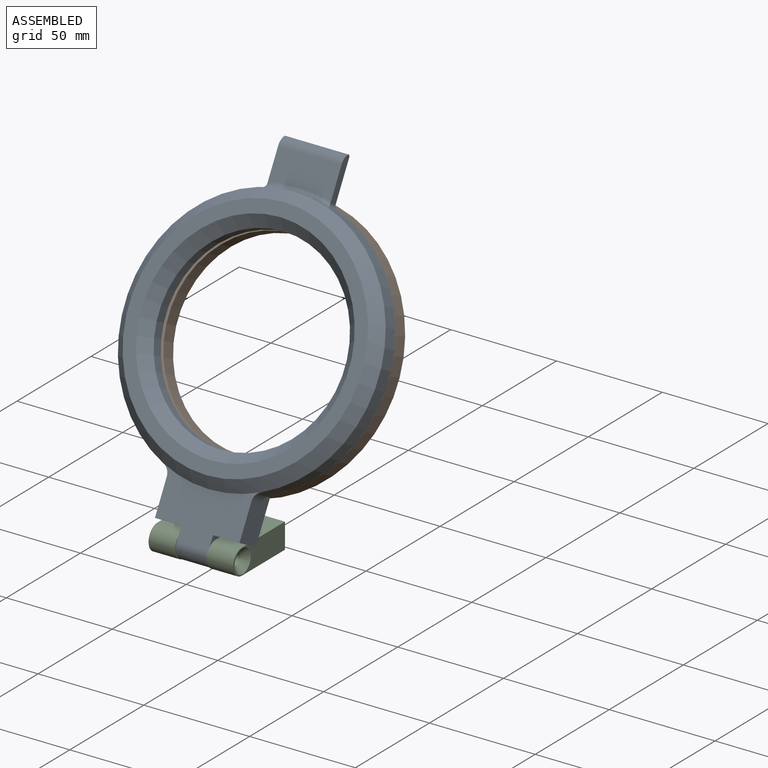
[diagram: assembled view]
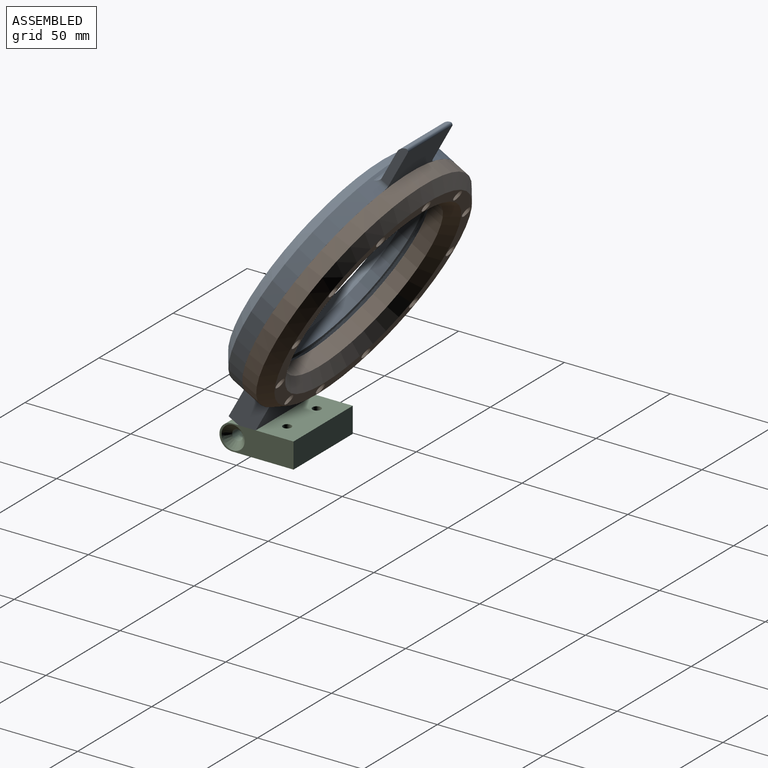
[diagram: assembled view, second angle]
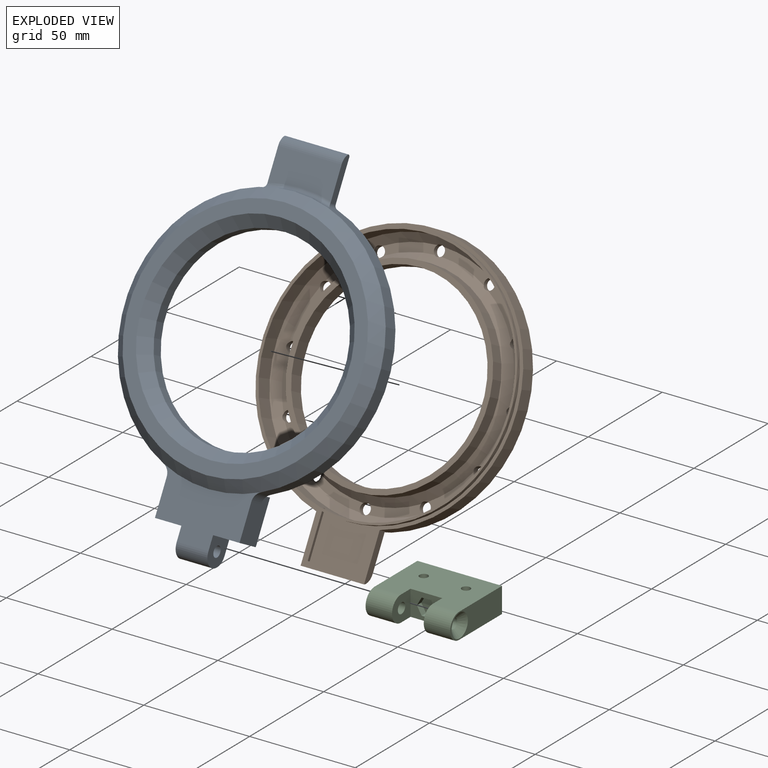
[diagram: exploded view]
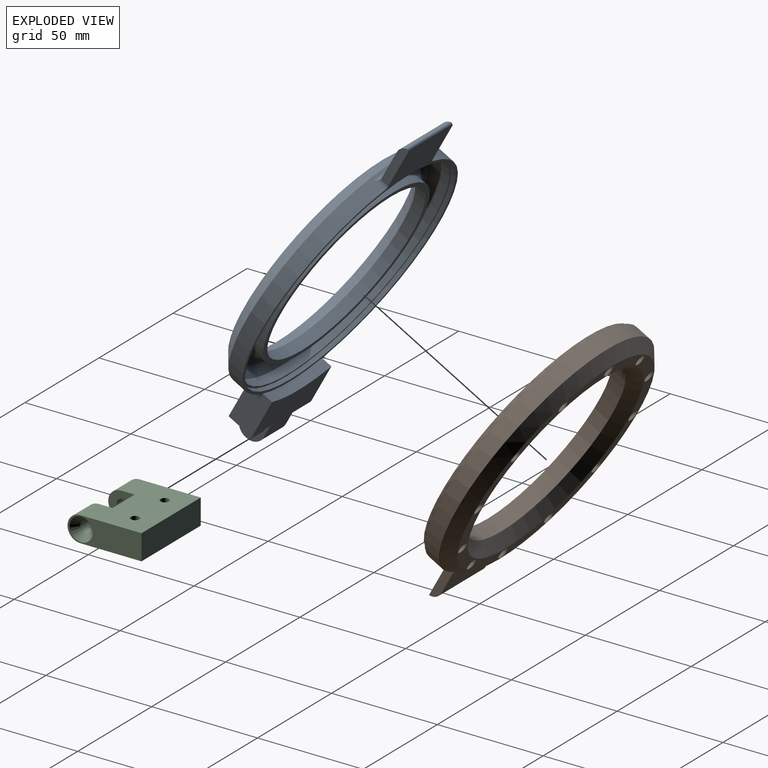
[diagram: exploded view, second angle]
ASSEMBLY  parts=3 mates=2
PART A: 37 faces, bbox 120x17.5x168.6 mm
  f0: cylinder r=44mm len=88mm, axis (0,1,0), area 1520.5mm2, adj f4,f29
  f1: plane 138.57x120mm, normal (0,-1,0), area 1139.3mm2, adj f2,f6,f7,f11,f12,f18,f19,f21
  f2: cylinder r=60mm len=120mm, axis (0,1,0), area 2272.1mm2, adj f1,f5,f18,f19,f20,f21,f22
  f3: plane 110x110mm, normal (0,1,0), area 1960.4mm2, adj f4,f5
  f4: cone r=49mm half-angle=45deg, axis (0,1,0), area 2065.9mm2, adj f0,f3
  f5: cone r=60mm half-angle=45deg, axis (0,-1,0), area 2554.7mm2, adj f2,f3,f17
  f6: plane 19.94x4.07mm, normal (1,0,0), area 76.1mm2, adj f1,f8,f9,f19,f20,f28
  f7: plane 19.94x4.07mm, normal (-1,0,0), area 76.1mm2, adj f1,f8,f9,f18,f20,f28
  f8: plane 30x14.94mm, normal (0,1,0), area 411.3mm2, adj f6,f7,f9,f20
  f9: cylinder r=5mm len=30mm, axis (-1,0,0), area 157.1mm2, adj f6,f7,f8,f28
  f10: plane 12.5x12.5mm, normal (0,0,1), area 156.3mm2, adj f11,f16,f17,f24
  f11: plane 20x12.5mm, normal (-1,0,0), area 224.3mm2, adj f1,f10,f17,f21,f23,f24
  f12: plane 20x12.5mm, normal (1,0,0), area 224.3mm2, adj f1,f13,f17,f22,f23,f24
  f13: plane 12.5x12.5mm, normal (0,0,1), area 156.3mm2, adj f12,f14,f17,f24
  f14: plane 12.5x12.5mm, normal (1,0,0), area 121.2mm2, adj f13,f15,f17,f24,f25,f26,f27
  f15: plane 15x0.5mm, normal (0,0,1), area 7.5mm2, adj f14,f16,f25,f26
  f16: plane 12.5x12.5mm, normal (-1,0,0), area 121.2mm2, adj f10,f15,f17,f24,f25,f26,f27
  f17: plane 46.15x27.68mm, normal (0,1,0), area 809.6mm2, adj f5,f10,f11,f12,f13,f14,f16,f21
  f18: cylinder r=2mm len=6mm, axis (0,1,0), area 12.6mm2, adj f1,f2,f7,f20
  f19: cylinder r=2mm len=6mm, axis (0,1,0), area 12.6mm2, adj f1,f2,f6,f20
  f20: torus R=62mm, axis (0,-1,0), area 98mm2, adj f2,f6,f7,f8,f18,f19
  f21: cylinder r=5mm len=7.5mm, axis (0,1,0), area 44.1mm2, adj f1,f2,f11,f17
  f22: cylinder r=5mm len=7.5mm, axis (0,1,0), area 44.1mm2, adj f1,f2,f12,f17
  f23: cylinder r=60mm len=40mm, axis (0,1,0), area 203.9mm2, adj f1,f11,f12,f24
  f24: plane 40x26.5mm, normal (0,-1,0), area 805.5mm2, adj f10,f11,f12,f13,f14,f16,f23,f25
  f25: cylinder r=6mm len=15mm, axis (-1,0,0), area 141.4mm2, adj f14,f15,f16,f24
  f26: cylinder r=6mm len=15mm, axis (1,0,0), area 141.4mm2, adj f14,f15,f16,f17
  f27: cylinder r=2.5mm len=15mm, axis (-1,0,0), area 235.6mm2, adj f14,f16
  f28: cylinder r=1mm len=30mm, axis (-1,0,0), area 62.8mm2, adj f1,f6,f7,f9
  f29: plane 93x93mm, normal (0,-1,0), area 710.8mm2, adj f0,f36
  f30: cylinder r=58.5mm len=117mm, axis (0,-1,0), area 735.1mm2, adj f1,f31
  f31: plane 117x117mm, normal (0,-1,0), area 364.4mm2, adj f30,f33
  f32: cone r=58.23mm half-angle=45deg, axis (0,-1,0), area 1750.9mm2, adj f33,f34
  f33: cylinder r=57.5mm len=115mm, axis (0,1,0), area 1612.9mm2, adj f31,f32
  f34: plane 107.93x107.93mm, normal (0,-1,0), area 1283.7mm2, adj f32,f35
  f35: cone r=50.77mm half-angle=45deg, axis (0,1,0), area 1516.4mm2, adj f34,f36
  f36: cylinder r=46.5mm len=93mm, axis (0,1,0), area 1304.4mm2, adj f29,f35
PART B: 46 faces, bbox 120x14.5x140 mm
  f0: plane 19.61x19.61mm, normal (0,-1,0), area 89.6mm2, adj f24,f25,f40,f41
  f1: plane 24.09x9.87mm, normal (0,-1,0), area 89.6mm2, adj f24,f25,f30,f41
  f2: plane 24.09x9.87mm, normal (0,-1,0), area 89.6mm2, adj f24,f25,f39,f40
  f3: plane 24.09x9.87mm, normal (0,-1,0), area 89.6mm2, adj f24,f25,f38,f39
  f4: plane 19.61x19.61mm, normal (0,-1,0), area 89.6mm2, adj f24,f25,f37,f38
  f5: plane 24.09x9.87mm, normal (0,-1,0), area 89.6mm2, adj f24,f25,f36,f37
  f6: plane 24.09x9.87mm, normal (0,-1,0), area 89.6mm2, adj f24,f25,f35,f36
  f7: plane 24.09x9.87mm, normal (0,-1,0), area 89.6mm2, adj f24,f25,f33,f34
  f8: plane 24.09x9.87mm, normal (0,-1,0), area 89.6mm2, adj f24,f25,f32,f33
  f9: plane 19.61x19.61mm, normal (0,-1,0), area 89.6mm2, adj f24,f25,f31,f32
  f10: plane 24.09x9.87mm, normal (0,-1,0), area 89.6mm2, adj f24,f25,f30,f31
  f11: plane 93x93mm, normal (0,-1,0), area 710.8mm2, adj f13,f22
  f12: cylinder r=60mm len=120mm, axis (0,1,0), area 2706.1mm2, adj f14,f17,f18,f19,f20
  f13: cylinder r=44mm len=88mm, axis (0,1,0), area 2073.5mm2, adj f11,f16
  f14: plane 140x120mm, normal (0,-1,0), area 691.1mm2, adj f12,f18,f19,f26,f27,f28,f42,f44
  f15: plane 110x110mm, normal (0,1,0), area 1724.7mm2, adj f16,f17,f30,f31,f32,f33,f34,f35
  f16: cone r=49mm half-angle=45deg, axis (0,1,0), area 2065.9mm2, adj f13,f15
  f17: cone r=60mm half-angle=45deg, axis (0,-1,0), area 2554.7mm2, adj f12,f15
  f18: plane 21.91x4mm, normal (1,0,0), area 82.7mm2, adj f12,f14,f20,f42
  f19: plane 21.91x4mm, normal (-1,0,0), area 82.7mm2, adj f12,f14,f20,f42
  f20: plane 30x17.01mm, normal (0,1,0), area 472mm2, adj f12,f18,f19,f42
  f21: cylinder r=57.5mm len=115mm, axis (0,1,0), area 3020.3mm2, adj f25,f26,f27,f29,f43,f45
  f22: cylinder r=46.5mm len=93mm, axis (0,1,0), area 1888.7mm2, adj f11,f24
  f23: plane 19.61x19.61mm, normal (0,-1,0), area 89.6mm2, adj f24,f25,f34,f35
  f24: cone r=50.77mm half-angle=45deg, axis (0,1,0), area 1497.6mm2, adj f0,f1,f2,f3,f4,f5,f6,f7
  f25: cone r=58.23mm half-angle=45deg, axis (0,-1,0), area 1731.3mm2, adj f0,f1,f2,f3,f4,f5,f6,f7
  f26: plane 21.38x1.5mm, normal (-1,0,0), area 32.1mm2, adj f14,f21,f28,f29,f43
  f27: plane 21.38x1.5mm, normal (1,0,0), area 32.1mm2, adj f14,f21,f28,f29,f43
  f28: plane 25x1.5mm, normal (0,0,1), area 37.5mm2, adj f14,f26,f27,f29
  f29: plane 25x21.38mm, normal (0,-1,0), area 511.4mm2, adj f21,f26,f27,f28
  f30: cylinder r=2.5mm len=5mm, axis (0,1,0), area 41.6mm2, adj f1,f10,f15,f24,f25
  f31: cylinder r=2.5mm len=5mm, axis (0,1,0), area 41.6mm2, adj f9,f10,f15,f24,f25
  f32: cylinder r=2.5mm len=5mm, axis (0,1,0), area 41.6mm2, adj f8,f9,f15,f24,f25
  f33: cylinder r=2.5mm len=5mm, axis (0,1,0), area 41.6mm2, adj f7,f8,f15,f24,f25
  f34: cylinder r=2.5mm len=5mm, axis (0,1,0), area 41.6mm2, adj f7,f15,f23,f24,f25
  f35: cylinder r=2.5mm len=5mm, axis (0,1,0), area 41.6mm2, adj f6,f15,f23,f24,f25
  f36: cylinder r=2.5mm len=5mm, axis (0,1,0), area 41.6mm2, adj f5,f6,f15,f24,f25
  f37: cylinder r=2.5mm len=5mm, axis (0,1,0), area 41.6mm2, adj f4,f5,f15,f24,f25
  f38: cylinder r=2.5mm len=5mm, axis (0,1,0), area 41.6mm2, adj f3,f4,f15,f24,f25
  f39: cylinder r=2.5mm len=5mm, axis (0,1,0), area 41.6mm2, adj f2,f3,f15,f24,f25
  f40: cylinder r=2.5mm len=5mm, axis (0,1,0), area 41.6mm2, adj f0,f2,f15,f24,f25
  f41: cylinder r=2.5mm len=5mm, axis (0,1,0), area 41.6mm2, adj f0,f1,f15,f24,f25
  f42: cylinder r=5mm len=30mm, axis (-1,0,0), area 205.4mm2, adj f14,f18,f19,f20
  f43: plane 25x2.38mm, normal (0,1,0), area 25.2mm2, adj f21,f26,f27,f44
  f44: cylinder r=58.5mm len=117mm, axis (0,1,0), area 735.1mm2, adj f14,f43,f45
  f45: plane 117x117mm, normal (0,-1,0), area 364.4mm2, adj f21,f44
PART C: 29 faces, bbox 40x12x35 mm
  f0: plane 15x12mm, normal (0,0,-1), area 127.4mm2, adj f3,f4,f7,f8,f20,f21,f22,f23
  f1: plane 35x12mm, normal (1,0,0), area 351.9mm2, adj f5,f7,f8,f9,f14,f15,f16,f17
  f2: cylinder r=2.5mm len=9.4mm, axis (1,0,0), area 147.7mm2, adj f4,f13
  f3: plane 12.5x12mm, normal (1,0,0), area 114.9mm2, adj f0,f7,f8,f10,f11
  f4: plane 12.5x12mm, normal (-1,0,0), area 114.9mm2, adj f0,f2,f7,f8,f9
  f5: plane 40x12mm, normal (0,0,1), area 480mm2, adj f1,f6,f7,f8
  f6: plane 35x12mm, normal (-1,0,0), area 309.5mm2, adj f5,f7,f8,f10,f12
  f7: plane 40x29mm, normal (0,-1,0), area 1037.4mm2, adj f0,f1,f3,f4,f5,f6,f9,f10
  f8: plane 40x29mm, normal (0,1,0), area 1037.4mm2, adj f0,f1,f3,f4,f5,f6,f9,f10
  f9: cylinder r=6mm len=12.5mm, axis (-1,0,0), area 235.6mm2, adj f1,f4,f7,f8
  f10: cylinder r=6mm len=12.5mm, axis (-1,0,0), area 235.6mm2, adj f3,f6,f7,f8
  f11: cylinder r=2.5mm len=9.5mm, axis (1,0,0), area 149.2mm2, adj f3,f12
  f12: cone r=2.5mm half-angle=45deg, axis (-1,0,0), area 106.6mm2, adj f6,f11
  f13: plane 9x7.79mm, normal (1,0,0), area 33mm2, adj f2,f14,f15,f16,f17,f18,f19
  f14: plane 4.5x3.1mm, normal (0,0,-1), area 14mm2, adj f1,f13,f15,f19
  f15: plane 3.9x3.1mm, normal (0,0.87,-0.5), area 13.9mm2, adj f1,f13,f14,f16
  f16: plane 3.9x3.1mm, normal (0,0.87,0.5), area 14mm2, adj f1,f13,f15,f17
  f17: plane 4.5x3.1mm, normal (0,0,1), area 14mm2, adj f1,f13,f16,f18
  f18: plane 3.9x3.1mm, normal (0,-0.87,0.5), area 14mm2, adj f1,f13,f17,f19
  f19: plane 3.9x3.1mm, normal (0,-0.87,-0.5), area 13.9mm2, adj f1,f13,f14,f18
  f20: plane 4.5x3mm, normal (0,-1,0), area 13.5mm2, adj f0,f21,f25,f26
  f21: plane 3.9x3mm, normal (-0.87,-0.5,0), area 13.5mm2, adj f0,f20,f22,f26
  f22: plane 3.9x3mm, normal (-0.87,0.5,0), area 13.5mm2, adj f0,f21,f23,f26
  f23: plane 4.5x3mm, normal (0,1,0), area 13.5mm2, adj f0,f22,f24,f26
  f24: plane 3.9x3mm, normal (0.87,0.5,0), area 13.5mm2, adj f0,f23,f25,f26
  f25: plane 3.9x3mm, normal (0.87,-0.5,0), area 13.5mm2, adj f0,f20,f24,f26
  f26: plane 9x7.79mm, normal (0,0,-1), area 52.6mm2, adj f20,f21,f22,f23,f24,f25
  f27: cylinder r=2mm len=12mm, axis (0,-1,0), area 150.8mm2, adj f7,f8
  f28: cylinder r=2mm len=12mm, axis (0,-1,0), area 150.8mm2, adj f7,f8
PLACE A rot(axis=(1,0,0),151.2deg) t=(45.65,124.74,256.83)mm
PLACE B rot(axis=(-1,0,0),28.8deg) t=(45.65,146.65,244.8)mm
PLACE C rot(axis=(0,0.71,0.71),180deg) t=(45.65,5.15,184.68)mm fixed
MATE revolute C.f2 <-> A.f26  axis (-1,0,0) through (53.15,94.42,178.71)mm
MATE revolute B.f44 <-> A.f30  axis (0,-0.88,0.48) through (45.65,135.7,250.81)mm
